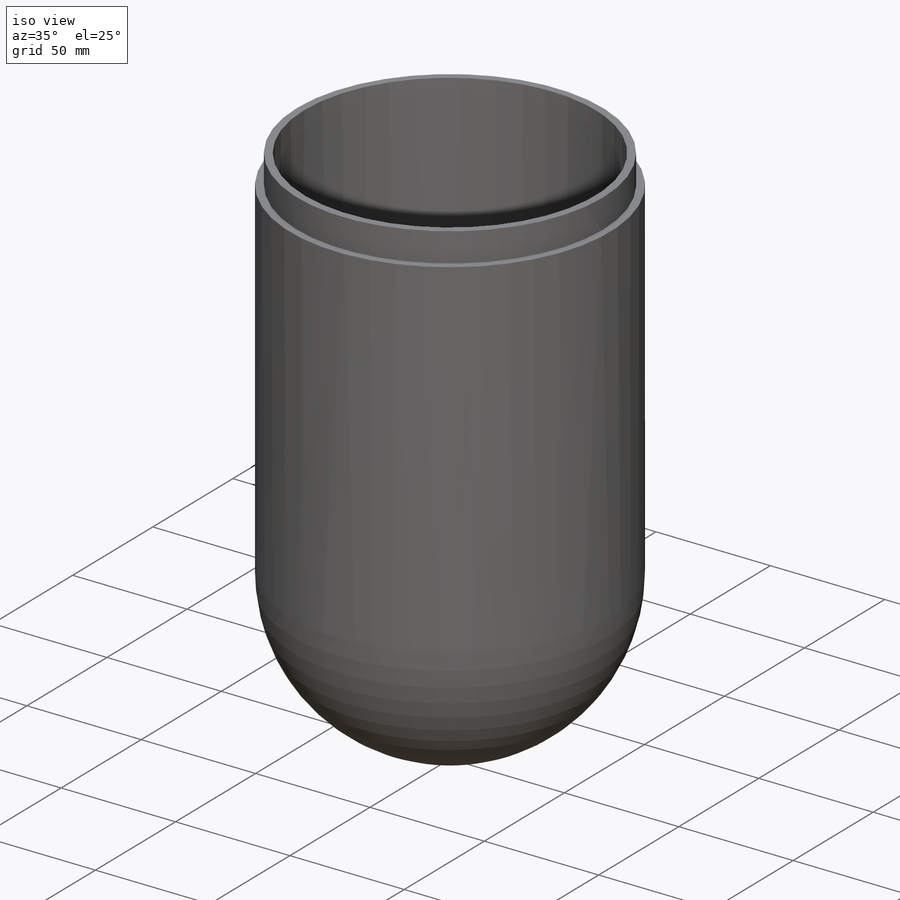
[diagram: iso view]
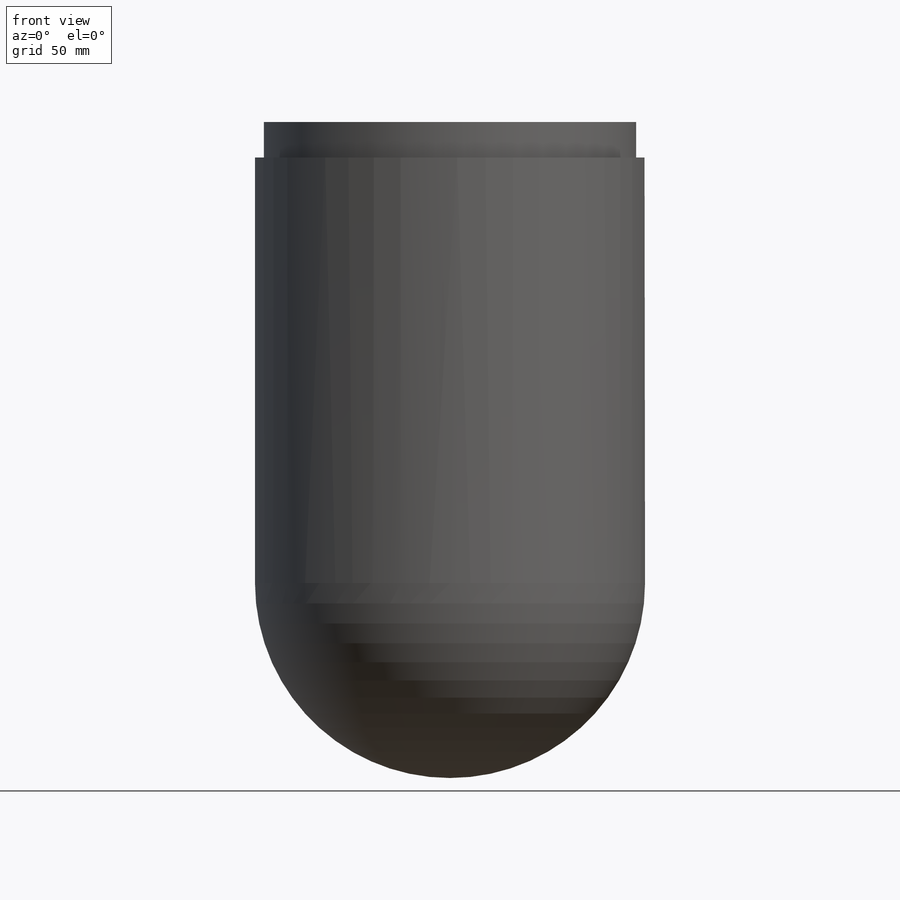
[diagram: front view]
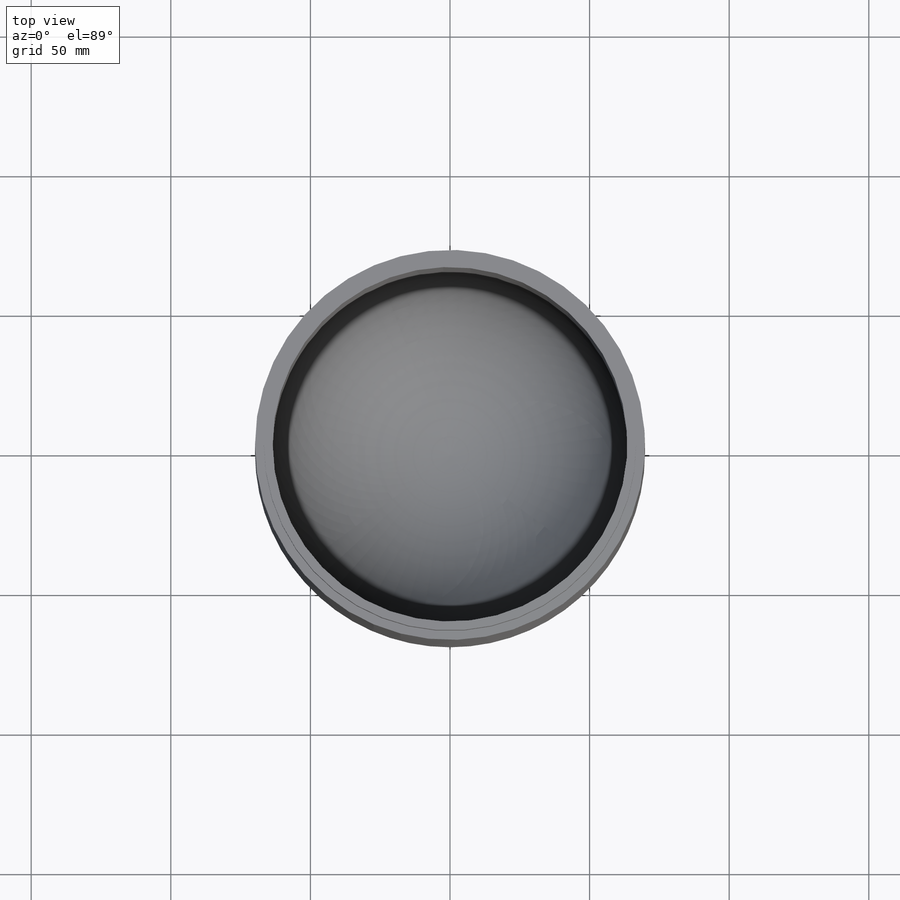
[diagram: top view]
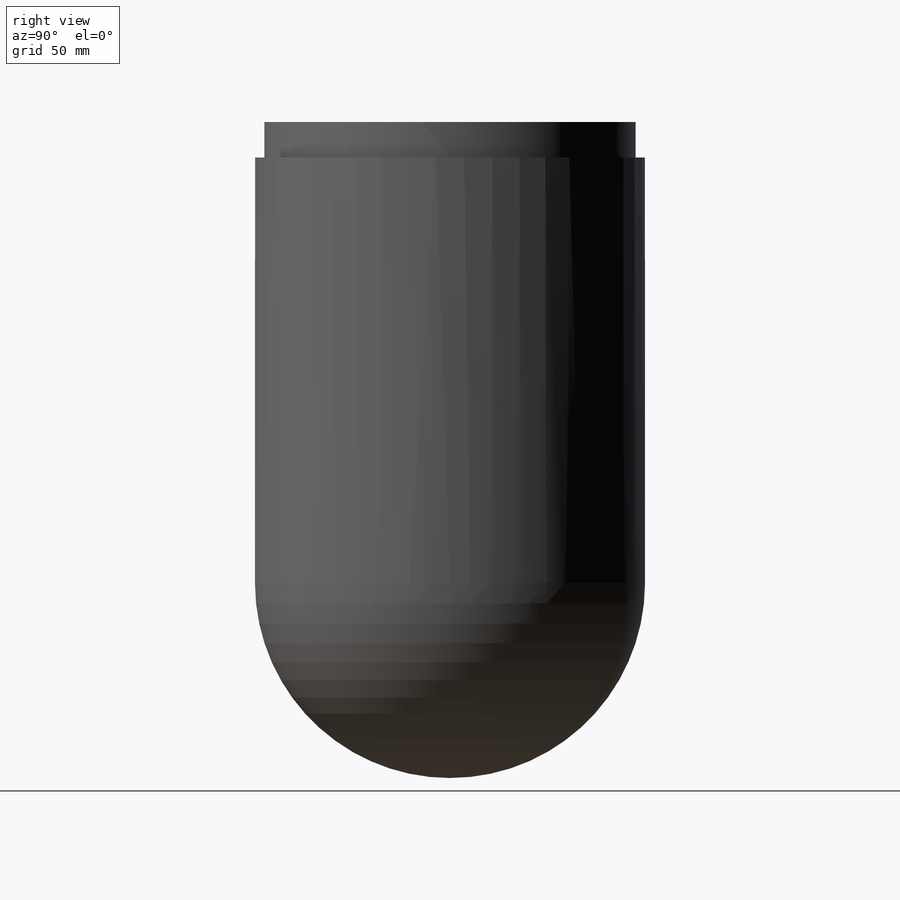
[diagram: right view]
SOLIDWORKS PART (.sldprt)
format: sldprt  version: not decoded by parser v0  size: 216,064 bytes
history: native  units: mm
features: sketch x6, cut_extrude x3, extrude x2, material x1, revolve x1 (+13 scaffold rows collapsed)
feature tree (26):
  scaffold x13  (default folders/planes/origin — collapsed)
  material  "Material <not specified>"
  sketch  "Sketch1"  dims[c1.D3=25.4mm c1.D4=254.0mm c1.D1=6.35mm c1.D2=152.4mm c2.D3=63.5mm c2.D4=12.7mm c2.D5=3.175mm]
  revolve  "Revolve1"  Angle=360deg
  sketch  "Sketch3"
  cut_extrude  "Cut-Extrude1"  Depth=12.7mm
  sketch  "Sketch4"  dims[D1=3.175mm]
  extrude  "Boss-Extrude2"  Depth=12.7mm
  sketch  "Sketch5"  dims[c1.D1=~136.316557mm c1.D2=133.35mm c2.D1=1.5875mm c2.D2=1.5875mm]
  extrude  "Boss-Extrude3"  Depth=9.525mm
  sketch  "Sketch7"  dims[D1=3.175mm]
  cut_extrude  "Cut-Extrude2"  Depth=1.5875mm
  sketch  "Sketch12"
  cut_extrude  "Cut-Extrude3"  Depth=7.9375mm
decode coverage: 10 of 12 modeling features carry decoded parameters
note: ~ marks probable driven/reference dimensions
note: suppression state not decoded; provenance and decode notes live in map.json
